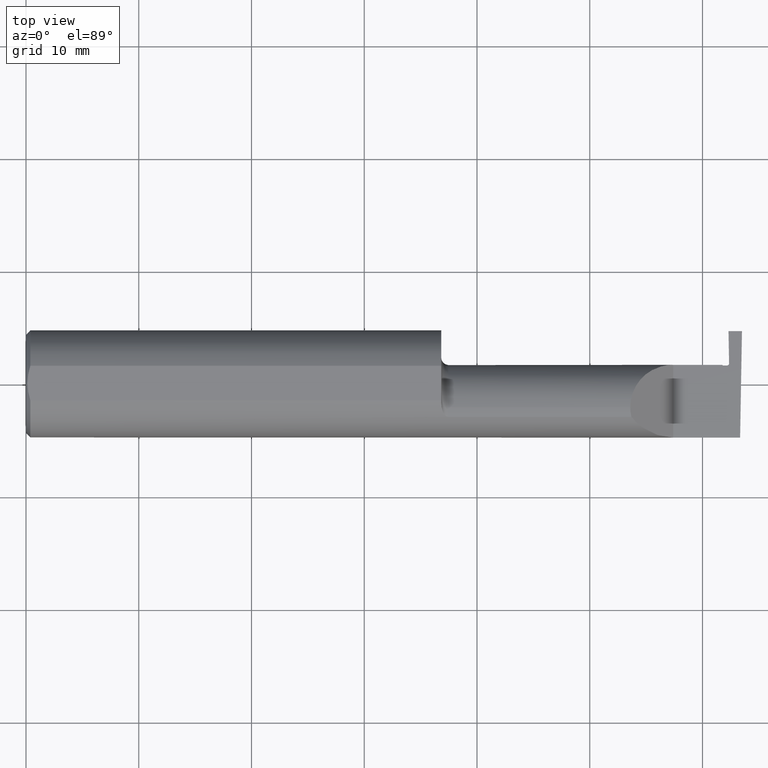
[diagram: clean part render]
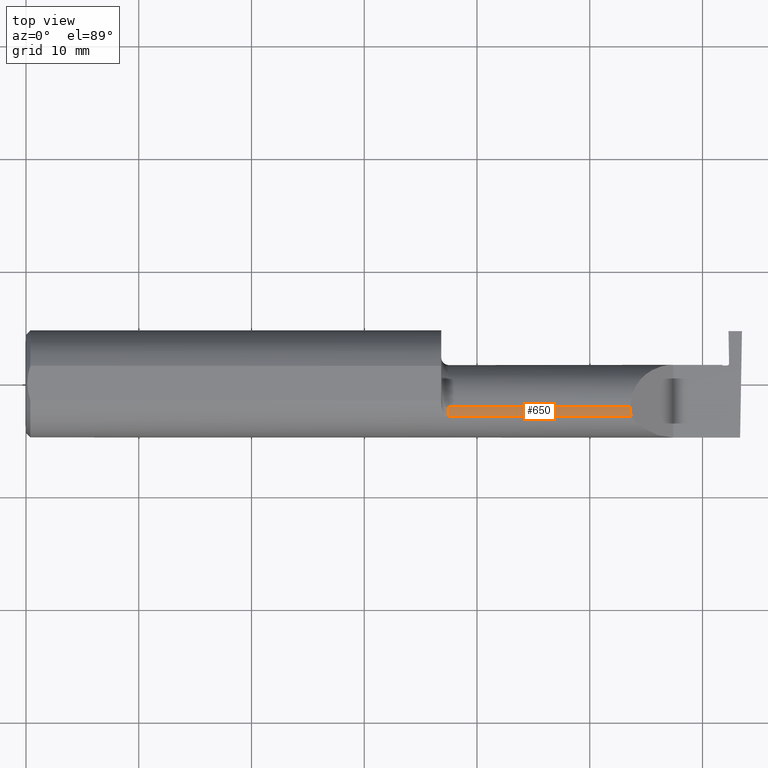
[diagram: same view with one face highlighted and labeled with its STEP entity id]
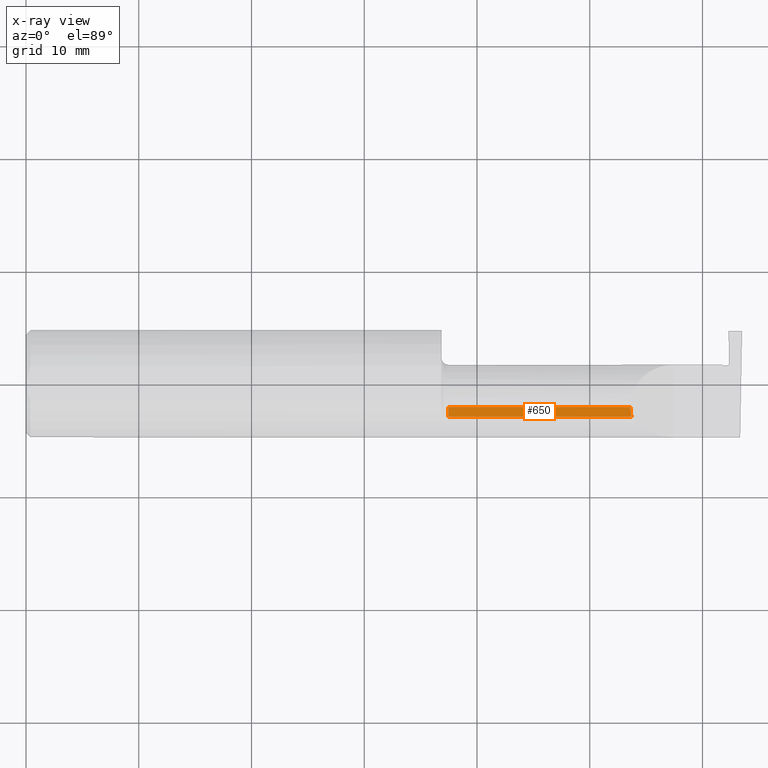
[diagram: x-ray of the same camera — body ghosted, the highlighted face saturated]
A machine part, top view. The second image highlights one B-rep face of the part: STEP entity #650.
The next image is the same camera in x-ray: the body ghosted, the highlighted face saturated — about 0% of this face is hidden behind the body in this view.
In plain terms, the highlighted cylindrical surface (partial cylindrical patch) has radius 3.81 mm, axis along (-1, -0, -0).
Its self-contained STEP definition (entity closure, byte-faithful):
#41 = EDGE_LOOP ( 'NONE', ( #198, #418, #282, #753 ) ) ;
#60 = CARTESIAN_POINT ( 'NONE',  ( 2.110000000000001208, -0.08334999999999996578, 0.1499999999999999944 ) ) ;
#62 = VERTEX_POINT ( 'NONE', #800 ) ;
#81 = CARTESIAN_POINT ( 'NONE',  ( 1.474999999999999867, -0.1172600179964007477, 0.1461167706989302817 ) ) ;
#89 = VERTEX_POINT ( 'NONE', #832 ) ;
#102 = AXIS2_PLACEMENT_3D ( 'NONE', #865, #302, #402 ) ;
#147 = VECTOR ( 'NONE', #553, 39.37007874015748143 ) ;
#194 = VECTOR ( 'NONE', #378, 39.37007874015748143 ) ;
#198 = ORIENTED_EDGE ( 'NONE', *, *, #700, .T. ) ;
#229 = DIRECTION ( 'NONE',  ( 0.000000000000000000, 0.000000000000000000, 1.000000000000000000 ) ) ;
#278 = VERTEX_POINT ( 'NONE', #368 ) ;
#282 = ORIENTED_EDGE ( 'NONE', *, *, #317, .F. ) ;
#302 = DIRECTION ( 'NONE',  ( -1.000000000000000000, -0.000000000000000000, -0.000000000000000000 ) ) ;
#309 = CARTESIAN_POINT ( 'NONE',  ( 1.474999999999999867, -0.08334999999999996578, 0.000000000000000000 ) ) ;
#313 = CARTESIAN_POINT ( 'NONE',  ( 2.113883229301070532, -0.1172600179964009143, 0.1461167706989301707 ) ) ;
#317 = EDGE_CURVE ( 'NONE', #353, #89, #1020, .T. ) ;
#353 = VERTEX_POINT ( 'NONE', #81 ) ;
#368 = CARTESIAN_POINT ( 'NONE',  ( 2.113883229301070532, -0.1172600179964009143, 0.1461167706989301707 ) ) ;
#378 = DIRECTION ( 'NONE',  ( 1.000000000000000000, 0.000000000000000000, 0.000000000000000000 ) ) ;
#383 = CARTESIAN_POINT ( 'NONE',  ( 1.961500000000000021, -0.1172600179964007061, 0.1461167706989303094 ) ) ;
#402 = DIRECTION ( 'NONE',  ( 0.000000000000000000, 0.000000000000000000, 1.000000000000000000 ) ) ;
#418 = ORIENTED_EDGE ( 'NONE', *, *, #945, .T. ) ;
#458 = CYLINDRICAL_SURFACE ( 'NONE', #102, 0.1499999999999999944 ) ;
#488 = LINE ( 'NONE', #562, #147 ) ;
#541 = LINE ( 'NONE', #383, #194 ) ;
#553 = DIRECTION ( 'NONE',  ( -1.000000000000000000, -0.000000000000000000, -0.000000000000000000 ) ) ;
#562 = CARTESIAN_POINT ( 'NONE',  ( 1.450000000000000178, -0.08334999999999996578, 0.1499999999999999944 ) ) ;
#634 = FACE_OUTER_BOUND ( 'NONE', #41, .T. ) ;
#640 = CARTESIAN_POINT ( 'NONE',  ( 2.111300037307155986, -0.1061291577212410964, 0.1486999626928445783 ) ) ;
#650 = ADVANCED_FACE ( 'NONE', ( #634 ), #458, .T. ) ;
#700 = EDGE_CURVE ( 'NONE', #278, #62, #819, .T. ) ;
#701 = CARTESIAN_POINT ( 'NONE',  ( 2.110000000000000764, -0.09477667630339427218, 0.1499999999999999944 ) ) ;
#753 = ORIENTED_EDGE ( 'NONE', *, *, #781, .T. ) ;
#781 = EDGE_CURVE ( 'NONE', #353, #278, #541, .T. ) ;
#800 = CARTESIAN_POINT ( 'NONE',  ( 2.110000000000001208, -0.08334999999999996578, 0.1499999999999999944 ) ) ;
#802 = AXIS2_PLACEMENT_3D ( 'NONE', #309, #804, #229 ) ;
#804 = DIRECTION ( 'NONE',  ( -1.000000000000000000, -0.000000000000000000, -0.000000000000000000 ) ) ;
#819 =( BOUNDED_CURVE ( )  B_SPLINE_CURVE ( 3, ( #313, #640, #701, #60 ),
 .UNSPECIFIED., .F., .F. ) 
 B_SPLINE_CURVE_WITH_KNOTS ( ( 4, 4 ),
 ( 6.055147272130140479, 6.283185307179586232 ),
 .UNSPECIFIED. ) 
 CURVE ( )  GEOMETRIC_REPRESENTATION_ITEM ( )  RATIONAL_B_SPLINE_CURVE ( ( 1.000000000000000000, 0.9956712472009929815, 0.9956712472009929815, 1.000000000000000000 ) ) 
 REPRESENTATION_ITEM ( '' )  );
#832 = CARTESIAN_POINT ( 'NONE',  ( 1.474999999999999867, -0.08334999999999996578, 0.1499999999999999944 ) ) ;
#865 = CARTESIAN_POINT ( 'NONE',  ( 1.450000000000000178, -0.08334999999999996578, 0.000000000000000000 ) ) ;
#945 = EDGE_CURVE ( 'NONE', #62, #89, #488, .T. ) ;
#1020 = CIRCLE ( 'NONE', #802, 0.1499999999999999944 ) ;